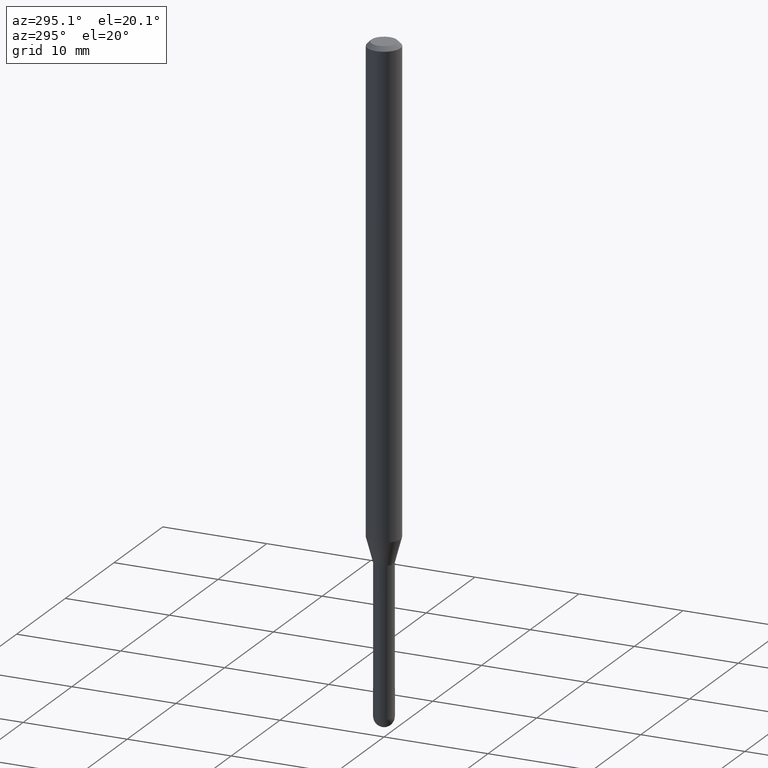
[diagram: clean part render]
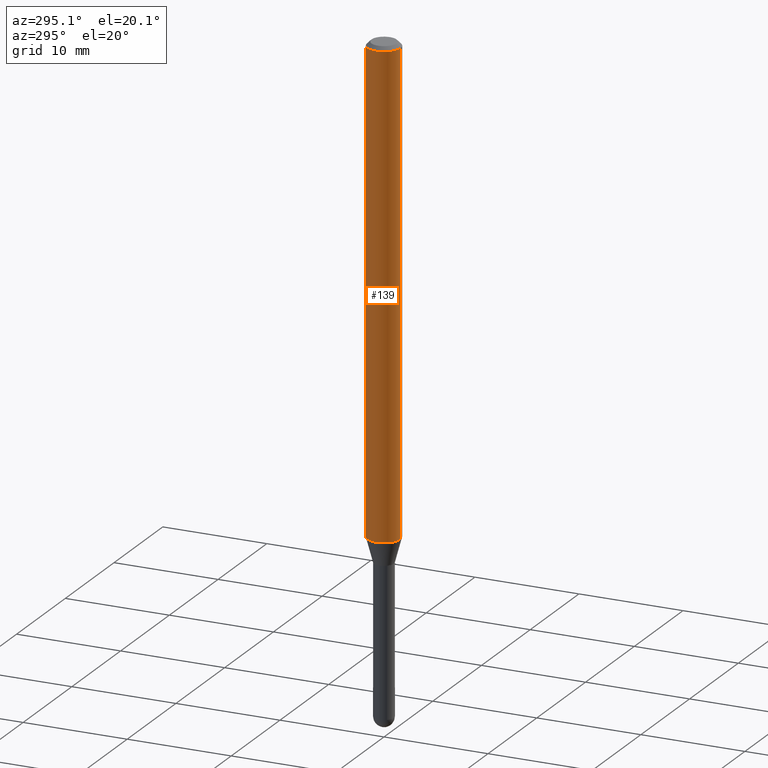
[diagram: same view with one face highlighted and labeled with its STEP entity id]
A machine part, auxiliary view. The second image highlights one B-rep face of the part: STEP entity #139.
In plain terms, the highlighted cylindrical surface (edge-blend (fillet) strip) has radius 1.5875 mm, axis along (-0, 0, 1).
Its self-contained STEP definition (entity closure, byte-faithful):
#38 = DIRECTION ( 'NONE',  ( -6.982962677686265922E-15, -1.000000000000000000, 3.491601197584523250E-15 ) ) ;
#39 = DIRECTION ( 'NONE',  ( -2.445385109273373286E-29, 3.491601197584523250E-15, 1.000000000000000000 ) ) ;
#42 = CYLINDRICAL_SURFACE ( 'NONE', #507, 0.06250000000000000000 ) ;
#47 = VECTOR ( 'NONE', #399, 39.37007874015748143 ) ;
#72 = DIRECTION ( 'NONE',  ( -2.445385109273373286E-29, 3.491601197584523250E-15, 1.000000000000000000 ) ) ;
#102 = VERTEX_POINT ( 'NONE', #512 ) ;
#104 = VERTEX_POINT ( 'NONE', #464 ) ;
#116 = LINE ( 'NONE', #491, #238 ) ;
#119 = DIRECTION ( 'NONE',  ( -2.445385109273373005E-29, 3.491601197584523250E-15, 1.000000000000000000 ) ) ;
#139 = ADVANCED_FACE ( 'NONE', ( #280 ), #42, .T. ) ;
#148 = ORIENTED_EDGE ( 'NONE', *, *, #178, .T. ) ;
#174 = AXIS2_PLACEMENT_3D ( 'NONE', #435, #72, #198 ) ;
#177 = AXIS2_PLACEMENT_3D ( 'NONE', #216, #39, #255 ) ;
#178 = EDGE_CURVE ( 'NONE', #102, #218, #385, .T. ) ;
#198 = DIRECTION ( 'NONE',  ( -6.982962677686265922E-15, -1.000000000000000000, 4.370956789862821150E-15 ) ) ;
#211 = CARTESIAN_POINT ( 'NONE',  ( 4.440892098500625669E-16, 0.06250000000000000000, -2.182250748490327031E-16 ) ) ;
#216 = CARTESIAN_POINT ( 'NONE',  ( 3.668077663910062276E-31, -5.237401796376787981E-17, -0.01500000000000000812 ) ) ;
#218 = VERTEX_POINT ( 'NONE', #441 ) ;
#238 = VECTOR ( 'NONE', #119, 39.37007874015748143 ) ;
#243 = CARTESIAN_POINT ( 'NONE',  ( -4.364351673553912750E-16, -0.06250000000000005551, -0.01499999999999979128 ) ) ;
#255 = DIRECTION ( 'NONE',  ( -6.982962677686265922E-15, -1.000000000000000000, 3.483106191921935554E-15 ) ) ;
#274 = CARTESIAN_POINT ( 'NONE',  ( 0.000000000000000000, 0.000000000000000000, 0.000000000000000000 ) ) ;
#280 = FACE_OUTER_BOUND ( 'NONE', #381, .T. ) ;
#300 = LINE ( 'NONE', #211, #47 ) ;
#307 = VERTEX_POINT ( 'NONE', #243 ) ;
#366 = CIRCLE ( 'NONE', #177, 0.06250000000000000000 ) ;
#368 = ORIENTED_EDGE ( 'NONE', *, *, #433, .F. ) ;
#381 = EDGE_LOOP ( 'NONE', ( #487, #148, #511, #368 ) ) ;
#385 = CIRCLE ( 'NONE', #174, 0.06250000000000000000 ) ;
#393 = EDGE_CURVE ( 'NONE', #102, #104, #300, .T. ) ;
#399 = DIRECTION ( 'NONE',  ( -2.445385109273373005E-29, 3.491601197584523250E-15, 1.000000000000000000 ) ) ;
#433 = EDGE_CURVE ( 'NONE', #104, #307, #366, .T. ) ;
#435 = CARTESIAN_POINT ( 'NONE',  ( 4.418074170822402201E-29, -6.308271448681760560E-15, -1.806698729810781057 ) ) ;
#441 = CARTESIAN_POINT ( 'NONE',  ( -4.364351673553477397E-16, -0.06250000000000634215, -1.806698729810780835 ) ) ;
#464 = CARTESIAN_POINT ( 'NONE',  ( 4.440892098501069896E-16, 0.06249999999999995143, -0.01500000000000022669 ) ) ;
#467 = DIRECTION ( 'NONE',  ( -2.445385109273373286E-29, 3.491601197584523250E-15, 1.000000000000000000 ) ) ;
#485 = EDGE_CURVE ( 'NONE', #218, #307, #116, .T. ) ;
#487 = ORIENTED_EDGE ( 'NONE', *, *, #393, .F. ) ;
#491 = CARTESIAN_POINT ( 'NONE',  ( -4.364351673553916201E-16, -0.06250000000000000000, 2.182250748490327031E-16 ) ) ;
#507 = AXIS2_PLACEMENT_3D ( 'NONE', #274, #467, #38 ) ;
#511 = ORIENTED_EDGE ( 'NONE', *, *, #485, .T. ) ;
#512 = CARTESIAN_POINT ( 'NONE',  ( 4.440892098501064966E-16, 0.06249999999999365785, -1.806698729810781501 ) ) ;